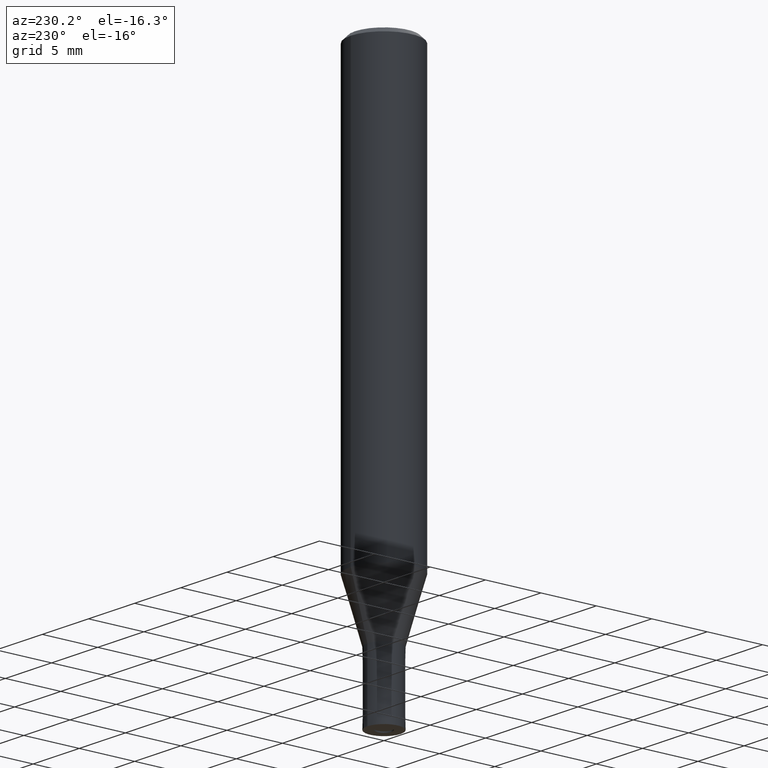
[diagram: clean part render]
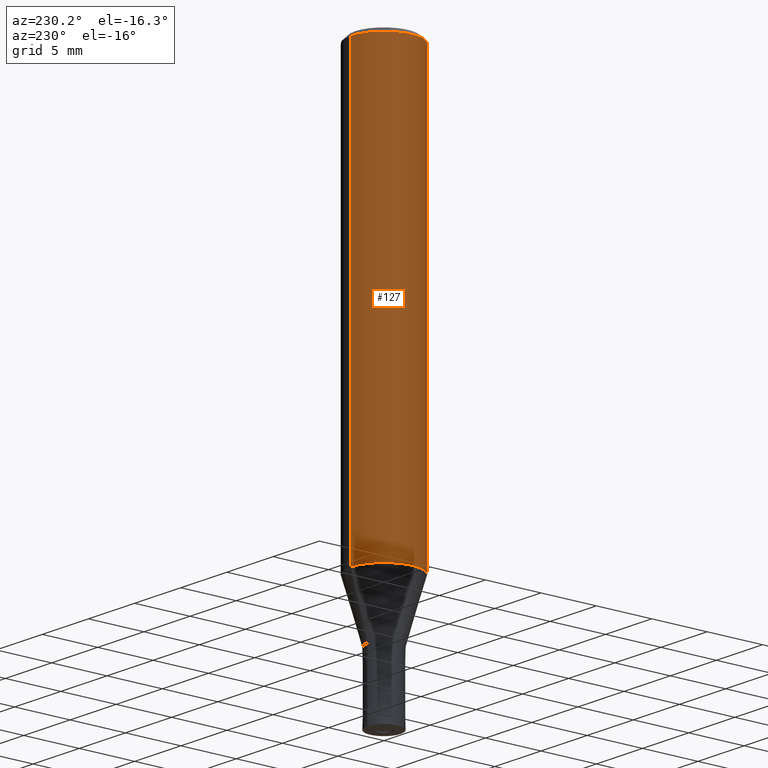
[diagram: same view with one face highlighted and labeled with its STEP entity id]
A machine part, auxiliary view. The second image highlights one B-rep face of the part: STEP entity #127.
In plain terms, the highlighted cylindrical surface (partial cylindrical patch) has radius 3 mm, axis along (-0, -0, 1).
Its self-contained STEP definition (entity closure, byte-faithful):
#109=EDGE_CURVE('',#211,#131,#280,.T.);
#117=VERTEX_POINT('',#290);
#127=ADVANCED_FACE('',(#303),#304,.T.);
#131=VERTEX_POINT('',#308);
#165=EDGE_CURVE('',#195,#117,#345,.T.);
#173=EDGE_CURVE('',#131,#117,#353,.T.);
#183=EDGE_CURVE('',#195,#211,#363,.T.);
#195=VERTEX_POINT('',#376);
#211=VERTEX_POINT('',#393);
#280=CIRCLE('',#466,3.0);
#290=CARTESIAN_POINT('',(0.0,3.0,-38.769));
#303=FACE_OUTER_BOUND('',#493,.T.);
#304=CYLINDRICAL_SURFACE('',#494,3.0);
#308=CARTESIAN_POINT('',(0.0,3.0,-0.399999999999999));
#345=CIRCLE('',#544,3.0);
#353=LINE('',#556,#557);
#363=LINE('',#569,#570);
#376=CARTESIAN_POINT('',(3.67381906146713E-016,-3.0,-38.769));
#393=CARTESIAN_POINT('',(3.67381906146713E-016,-3.0,-0.399999999999999));
#466=AXIS2_PLACEMENT_3D('',#683,#684,#685);
#493=EDGE_LOOP('',(#726,#727,#728,#729));
#494=AXIS2_PLACEMENT_3D('',#730,#731,#732);
#544=AXIS2_PLACEMENT_3D('',#780,#781,#782);
#556=CARTESIAN_POINT('',(-3.67381906146713E-016,3.0,-19.5845));
#557=VECTOR('',#787,1.0);
#569=CARTESIAN_POINT('',(3.67381906146713E-016,-3.0,-19.5845));
#570=VECTOR('',#791,1.0);
#683=CARTESIAN_POINT('',(0.0,0.0,-0.399999999999999));
#684=DIRECTION('',(0.0,0.0,-1.0));
#685=DIRECTION('',(0.0,1.0,0.0));
#726=ORIENTED_EDGE('',*,*,#173,.T.);
#727=ORIENTED_EDGE('',*,*,#165,.F.);
#728=ORIENTED_EDGE('',*,*,#183,.T.);
#729=ORIENTED_EDGE('',*,*,#109,.T.);
#730=CARTESIAN_POINT('',(0.0,0.0,-19.5845));
#731=DIRECTION('',(-0.0,-0.0,1.0));
#732=DIRECTION('',(0.0,1.0,0.0));
#780=CARTESIAN_POINT('',(0.0,0.0,-38.769));
#781=DIRECTION('',(0.0,0.0,-1.0));
#782=DIRECTION('',(0.0,1.0,0.0));
#787=DIRECTION('',(0.0,0.0,-1.0));
#791=DIRECTION('',(-0.0,-0.0,1.0));